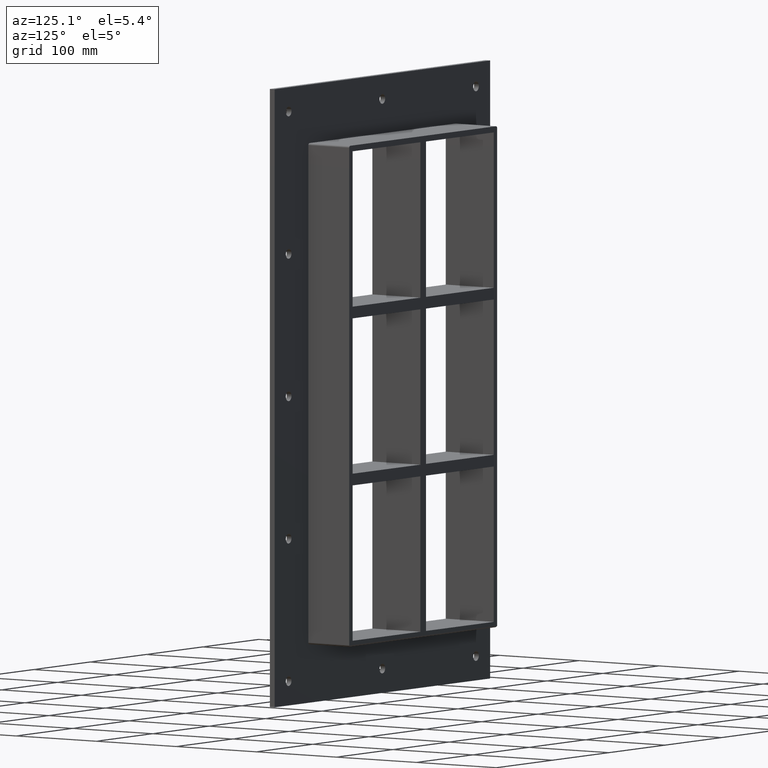
[diagram: clean part render]
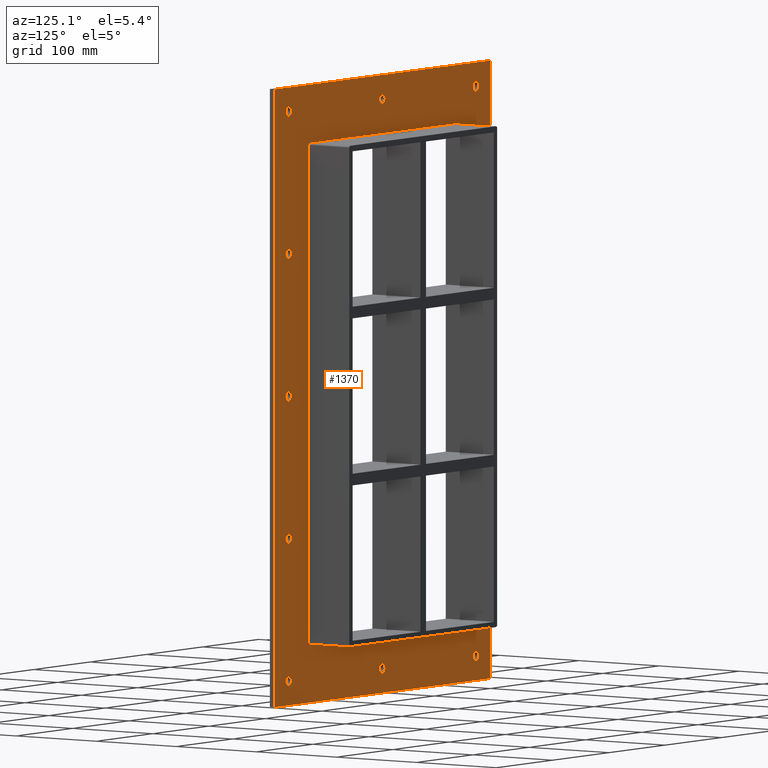
[diagram: same view with one face highlighted and labeled with its STEP entity id]
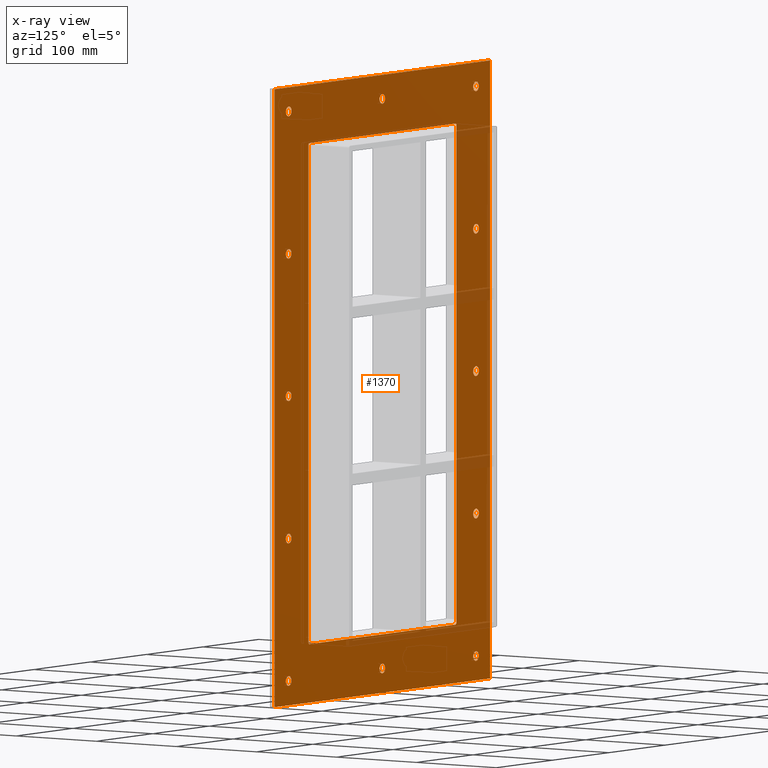
[diagram: x-ray of the same camera — body ghosted, the highlighted face saturated]
A machine part, auxiliary view. The second image highlights one B-rep face of the part: STEP entity #1370.
The next image is the same camera in x-ray: the body ghosted, the highlighted face saturated — about 6% of this face is hidden behind the body in this view.
In plain terms, the highlighted planar face has unit normal (0, 1, 0).
Its self-contained STEP definition (entity closure, byte-faithful):
#73=CARTESIAN_POINT('',(-171.50000000000011,5.999999999999943,-292.24999999999994));
#74=VERTEX_POINT('',#73);
#75=CARTESIAN_POINT('',(-166.50000000000011,5.999999999999943,-292.24999999999994));
#76=DIRECTION('',(0.0,-1.0,0.0));
#77=DIRECTION('',(1.0,0.0,0.0));
#78=AXIS2_PLACEMENT_3D('',#75,#76,#77);
#79=CIRCLE('',#78,5.0);
#80=EDGE_CURVE('',#74,#74,#79,.T.);
#101=CARTESIAN_POINT('',(161.49999999999991,5.999999999999943,-146.04999999999998));
#102=VERTEX_POINT('',#101);
#103=CARTESIAN_POINT('',(166.49999999999991,5.999999999999943,-146.04999999999998));
#104=DIRECTION('',(0.0,-1.0,0.0));
#105=DIRECTION('',(1.0,0.0,0.0));
#106=AXIS2_PLACEMENT_3D('',#103,#104,#105);
#107=CIRCLE('',#106,5.0);
#108=EDGE_CURVE('',#102,#102,#107,.T.);
#129=CARTESIAN_POINT('',(-171.50000000000011,5.999999999999943,-146.04999999999998));
#130=VERTEX_POINT('',#129);
#131=CARTESIAN_POINT('',(-166.50000000000011,5.999999999999943,-146.04999999999998));
#132=DIRECTION('',(0.0,-1.0,0.0));
#133=DIRECTION('',(1.0,0.0,0.0));
#134=AXIS2_PLACEMENT_3D('',#131,#132,#133);
#135=CIRCLE('',#134,5.0);
#136=EDGE_CURVE('',#130,#130,#135,.T.);
#157=CARTESIAN_POINT('',(161.49999999999991,5.999999999999943,0.150000000000041));
#158=VERTEX_POINT('',#157);
#159=CARTESIAN_POINT('',(166.49999999999991,5.999999999999943,0.150000000000041));
#160=DIRECTION('',(0.0,-1.0,0.0));
#161=DIRECTION('',(1.0,0.0,0.0));
#162=AXIS2_PLACEMENT_3D('',#159,#160,#161);
#163=CIRCLE('',#162,5.0);
#164=EDGE_CURVE('',#158,#158,#163,.T.);
#185=CARTESIAN_POINT('',(-171.50000000000011,5.999999999999943,0.150000000000041));
#186=VERTEX_POINT('',#185);
#187=CARTESIAN_POINT('',(-166.50000000000011,5.999999999999943,0.150000000000041));
#188=DIRECTION('',(0.0,-1.0,0.0));
#189=DIRECTION('',(1.0,0.0,0.0));
#190=AXIS2_PLACEMENT_3D('',#187,#188,#189);
#191=CIRCLE('',#190,5.0);
#192=EDGE_CURVE('',#186,#186,#191,.T.);
#213=CARTESIAN_POINT('',(161.49999999999991,5.999999999999943,146.35000000000002));
#214=VERTEX_POINT('',#213);
#215=CARTESIAN_POINT('',(166.49999999999991,5.999999999999943,146.35000000000002));
#216=DIRECTION('',(0.0,-1.0,0.0));
#217=DIRECTION('',(1.0,0.0,0.0));
#218=AXIS2_PLACEMENT_3D('',#215,#216,#217);
#219=CIRCLE('',#218,5.0);
#220=EDGE_CURVE('',#214,#214,#219,.T.);
#241=CARTESIAN_POINT('',(-171.50000000000011,5.999999999999943,146.35000000000002));
#242=VERTEX_POINT('',#241);
#243=CARTESIAN_POINT('',(-166.50000000000011,5.999999999999943,146.35000000000002));
#244=DIRECTION('',(0.0,-1.0,0.0));
#245=DIRECTION('',(1.0,0.0,0.0));
#246=AXIS2_PLACEMENT_3D('',#243,#244,#245);
#247=CIRCLE('',#246,5.0);
#248=EDGE_CURVE('',#242,#242,#247,.T.);
#269=CARTESIAN_POINT('',(-5.000000000000107,5.999999999999943,292.55000000000001));
#270=VERTEX_POINT('',#269);
#271=CARTESIAN_POINT('',(-1.065814E-013,5.999999999999943,292.55000000000001));
#272=DIRECTION('',(0.0,-1.0,0.0));
#273=DIRECTION('',(1.0,0.0,0.0));
#274=AXIS2_PLACEMENT_3D('',#271,#272,#273);
#275=CIRCLE('',#274,5.0);
#276=EDGE_CURVE('',#270,#270,#275,.T.);
#297=CARTESIAN_POINT('',(-5.000000000000107,5.999999999999943,-292.24999999999994));
#298=VERTEX_POINT('',#297);
#299=CARTESIAN_POINT('',(-1.065814E-013,5.999999999999943,-292.24999999999994));
#300=DIRECTION('',(0.0,-1.0,0.0));
#301=DIRECTION('',(1.0,0.0,0.0));
#302=AXIS2_PLACEMENT_3D('',#299,#300,#301);
#303=CIRCLE('',#302,5.0);
#304=EDGE_CURVE('',#298,#298,#303,.T.);
#325=CARTESIAN_POINT('',(161.49999999999991,5.999999999999943,-292.24999999999994));
#326=VERTEX_POINT('',#325);
#327=CARTESIAN_POINT('',(166.49999999999991,5.999999999999943,-292.24999999999994));
#328=DIRECTION('',(0.0,-1.0,0.0));
#329=DIRECTION('',(1.0,0.0,0.0));
#330=AXIS2_PLACEMENT_3D('',#327,#328,#329);
#331=CIRCLE('',#330,5.0);
#332=EDGE_CURVE('',#326,#326,#331,.T.);
#353=CARTESIAN_POINT('',(-171.50000000000011,5.999999999999943,292.55000000000001));
#354=VERTEX_POINT('',#353);
#355=CARTESIAN_POINT('',(-166.50000000000011,5.999999999999943,292.55000000000001));
#356=DIRECTION('',(0.0,-1.0,0.0));
#357=DIRECTION('',(1.0,0.0,0.0));
#358=AXIS2_PLACEMENT_3D('',#355,#356,#357);
#359=CIRCLE('',#358,5.0);
#360=EDGE_CURVE('',#354,#354,#359,.T.);
#381=CARTESIAN_POINT('',(161.49999999999991,5.999999999999943,292.55000000000001));
#382=VERTEX_POINT('',#381);
#383=CARTESIAN_POINT('',(166.49999999999991,5.999999999999943,292.55000000000001));
#384=DIRECTION('',(0.0,-1.0,0.0));
#385=DIRECTION('',(1.0,0.0,0.0));
#386=AXIS2_PLACEMENT_3D('',#383,#384,#385);
#387=CIRCLE('',#386,5.0);
#388=EDGE_CURVE('',#382,#382,#387,.T.);
#1225=CARTESIAN_POINT('',(0.0,6.000000000000001,3.621673E-014));
#1226=DIRECTION('',(0.0,1.0,0.0));
#1227=DIRECTION('',(0.0,0.0,1.0));
#1228=AXIS2_PLACEMENT_3D('',#1225,#1226,#1227);
#1229=PLANE('',#1228);
#1230=CARTESIAN_POINT('',(-191.5,6.000000000000001,317.25));
#1231=VERTEX_POINT('',#1230);
#1232=CARTESIAN_POINT('',(191.5,6.000000000000001,317.25));
#1233=VERTEX_POINT('',#1232);
#1234=CARTESIAN_POINT('',(-191.5,6.000000000000001,317.25));
#1235=DIRECTION('',(1.0,0.0,0.0));
#1236=VECTOR('',#1235,383.0);
#1237=LINE('',#1234,#1236);
#1238=EDGE_CURVE('',#1231,#1233,#1237,.T.);
#1239=ORIENTED_EDGE('',*,*,#1238,.T.);
#1240=CARTESIAN_POINT('',(191.5,6.000000000000001,-317.24999999999994));
#1241=VERTEX_POINT('',#1240);
#1242=CARTESIAN_POINT('',(191.5,6.000000000000001,317.25));
#1243=DIRECTION('',(0.0,0.0,-1.0));
#1244=VECTOR('',#1243,634.5);
#1245=LINE('',#1242,#1244);
#1246=EDGE_CURVE('',#1233,#1241,#1245,.T.);
#1247=ORIENTED_EDGE('',*,*,#1246,.T.);
#1248=CARTESIAN_POINT('',(-191.5,6.000000000000001,-317.24999999999994));
#1249=VERTEX_POINT('',#1248);
#1250=CARTESIAN_POINT('',(191.5,6.000000000000001,-317.24999999999994));
#1251=DIRECTION('',(-1.0,0.0,0.0));
#1252=VECTOR('',#1251,383.0);
#1253=LINE('',#1250,#1252);
#1254=EDGE_CURVE('',#1241,#1249,#1253,.T.);
#1255=ORIENTED_EDGE('',*,*,#1254,.T.);
#1256=CARTESIAN_POINT('',(-191.5,6.000000000000001,-317.24999999999994));
#1257=DIRECTION('',(0.0,0.0,1.0));
#1258=VECTOR('',#1257,634.5);
#1259=LINE('',#1256,#1258);
#1260=EDGE_CURVE('',#1249,#1231,#1259,.T.);
#1261=ORIENTED_EDGE('',*,*,#1260,.T.);
#1262=EDGE_LOOP('',(#1239,#1247,#1255,#1261));
#1263=FACE_OUTER_BOUND('',#1262,.T.);
#1264=ORIENTED_EDGE('',*,*,#80,.T.);
#1265=EDGE_LOOP('',(#1264));
#1266=FACE_BOUND('',#1265,.T.);
#1267=ORIENTED_EDGE('',*,*,#108,.T.);
#1268=EDGE_LOOP('',(#1267));
#1269=FACE_BOUND('',#1268,.T.);
#1270=ORIENTED_EDGE('',*,*,#136,.T.);
#1271=EDGE_LOOP('',(#1270));
#1272=FACE_BOUND('',#1271,.T.);
#1273=ORIENTED_EDGE('',*,*,#164,.T.);
#1274=EDGE_LOOP('',(#1273));
#1275=FACE_BOUND('',#1274,.T.);
#1276=ORIENTED_EDGE('',*,*,#192,.T.);
#1277=EDGE_LOOP('',(#1276));
#1278=FACE_BOUND('',#1277,.T.);
#1279=ORIENTED_EDGE('',*,*,#220,.T.);
#1280=EDGE_LOOP('',(#1279));
#1281=FACE_BOUND('',#1280,.T.);
#1282=ORIENTED_EDGE('',*,*,#248,.T.);
#1283=EDGE_LOOP('',(#1282));
#1284=FACE_BOUND('',#1283,.T.);
#1285=ORIENTED_EDGE('',*,*,#276,.T.);
#1286=EDGE_LOOP('',(#1285));
#1287=FACE_BOUND('',#1286,.T.);
#1288=ORIENTED_EDGE('',*,*,#304,.T.);
#1289=EDGE_LOOP('',(#1288));
#1290=FACE_BOUND('',#1289,.T.);
#1291=ORIENTED_EDGE('',*,*,#332,.T.);
#1292=EDGE_LOOP('',(#1291));
#1293=FACE_BOUND('',#1292,.T.);
#1294=ORIENTED_EDGE('',*,*,#360,.T.);
#1295=EDGE_LOOP('',(#1294));
#1296=FACE_BOUND('',#1295,.T.);
#1297=ORIENTED_EDGE('',*,*,#388,.T.);
#1298=EDGE_LOOP('',(#1297));
#1299=FACE_BOUND('',#1298,.T.);
#1300=CARTESIAN_POINT('',(-131.50000000000003,6.000000000000001,255.25));
#1301=VERTEX_POINT('',#1300);
#1302=CARTESIAN_POINT('',(-129.50000000000003,6.000000000000001,257.25));
#1303=VERTEX_POINT('',#1302);
#1304=CARTESIAN_POINT('',(-129.50000000000003,6.000000000000001,255.25));
#1305=DIRECTION('',(0.0,1.0,0.0));
#1306=DIRECTION('',(-0.707106781186541,0.0,0.707106781186554));
#1307=AXIS2_PLACEMENT_3D('',#1304,#1305,#1306);
#1308=CIRCLE('',#1307,2.0);
#1309=EDGE_CURVE('',#1301,#1303,#1308,.T.);
#1310=ORIENTED_EDGE('',*,*,#1309,.F.);
#1311=CARTESIAN_POINT('',(-131.50000000000003,6.000000000000001,-255.25));
#1312=VERTEX_POINT('',#1311);
#1313=CARTESIAN_POINT('',(-131.50000000000003,6.000000000000001,-255.25));
#1314=DIRECTION('',(0.0,0.0,1.0));
#1315=VECTOR('',#1314,510.49999999999994);
#1316=LINE('',#1313,#1315);
#1317=EDGE_CURVE('',#1312,#1301,#1316,.T.);
#1318=ORIENTED_EDGE('',*,*,#1317,.F.);
#1319=CARTESIAN_POINT('',(-129.50000000000003,6.000000000000001,-257.25));
#1320=VERTEX_POINT('',#1319);
#1321=CARTESIAN_POINT('',(-129.50000000000003,6.000000000000001,-255.25));
#1322=DIRECTION('',(0.0,1.0,0.0));
#1323=DIRECTION('',(-0.707106781186541,0.0,-0.707106781186554));
#1324=AXIS2_PLACEMENT_3D('',#1321,#1322,#1323);
#1325=CIRCLE('',#1324,2.0);
#1326=EDGE_CURVE('',#1320,#1312,#1325,.T.);
#1327=ORIENTED_EDGE('',*,*,#1326,.F.);
#1328=CARTESIAN_POINT('',(129.5,6.000000000000001,-257.25));
#1329=VERTEX_POINT('',#1328);
#1330=CARTESIAN_POINT('',(129.5,6.000000000000001,-257.25));
#1331=DIRECTION('',(-1.0,0.0,0.0));
#1332=VECTOR('',#1331,259.0);
#1333=LINE('',#1330,#1332);
#1334=EDGE_CURVE('',#1329,#1320,#1333,.T.);
#1335=ORIENTED_EDGE('',*,*,#1334,.F.);
#1336=CARTESIAN_POINT('',(131.5,6.000000000000001,-255.25));
#1337=VERTEX_POINT('',#1336);
#1338=CARTESIAN_POINT('',(129.5,6.000000000000001,-255.25));
#1339=DIRECTION('',(0.0,1.0,0.0));
#1340=DIRECTION('',(0.707106781186541,0.0,-0.707106781186554));
#1341=AXIS2_PLACEMENT_3D('',#1338,#1339,#1340);
#1342=CIRCLE('',#1341,2.0);
#1343=EDGE_CURVE('',#1337,#1329,#1342,.T.);
#1344=ORIENTED_EDGE('',*,*,#1343,.F.);
#1345=CARTESIAN_POINT('',(131.5,6.000000000000001,255.25000000000003));
#1346=VERTEX_POINT('',#1345);
#1347=CARTESIAN_POINT('',(131.5,6.000000000000001,255.25000000000003));
#1348=DIRECTION('',(0.0,0.0,-1.0));
#1349=VECTOR('',#1348,510.5);
#1350=LINE('',#1347,#1349);
#1351=EDGE_CURVE('',#1346,#1337,#1350,.T.);
#1352=ORIENTED_EDGE('',*,*,#1351,.F.);
#1353=CARTESIAN_POINT('',(129.5,6.000000000000001,257.25));
#1354=VERTEX_POINT('',#1353);
#1355=CARTESIAN_POINT('',(129.5,6.000000000000001,255.25000000000003));
#1356=DIRECTION('',(0.0,1.0,0.0));
#1357=DIRECTION('',(0.707106781186554,0.0,0.707106781186541));
#1358=AXIS2_PLACEMENT_3D('',#1355,#1356,#1357);
#1359=CIRCLE('',#1358,2.0);
#1360=EDGE_CURVE('',#1354,#1346,#1359,.T.);
#1361=ORIENTED_EDGE('',*,*,#1360,.F.);
#1362=CARTESIAN_POINT('',(-129.50000000000003,6.000000000000001,257.25));
#1363=DIRECTION('',(1.0,0.0,0.0));
#1364=VECTOR('',#1363,259.0);
#1365=LINE('',#1362,#1364);
#1366=EDGE_CURVE('',#1303,#1354,#1365,.T.);
#1367=ORIENTED_EDGE('',*,*,#1366,.F.);
#1368=EDGE_LOOP('',(#1310,#1318,#1327,#1335,#1344,#1352,#1361,#1367));
#1369=FACE_BOUND('',#1368,.T.);
#1370=ADVANCED_FACE('',(#1263,#1266,#1269,#1272,#1275,#1278,#1281,#1284,#1287,#1290,#1293,#1296,#1299,#1369),#1229,.T.);